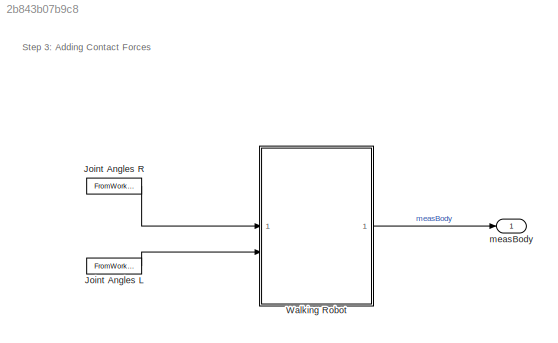
MODEL slx_2b843b07b9c8
KIND model
CONFIG AbsTol = auto
CONFIG EnableMultiTasking = off
CONFIG FixedStep = auto
CONFIG MaxStep = auto
CONFIG MinStep = auto
CONFIG PreLoadFcn = robotParameters\nload jointAngs
CONFIG RelTol = 1e-3
CONFIG SampleTimeConstraint = Unconstrained
CONFIG SolverName = VariableStepAuto
CONFIG StartTime = 0.0
CONFIG StopTime = 10.0
BLOCK [FromWorkspace] Joint Angles L
  OutputAfterFinalValue = Holding final value
  VariableName = jAngsL
BLOCK [FromWorkspace] Joint Angles R
  OutputAfterFinalValue = Holding final value
  VariableName = jAngsR
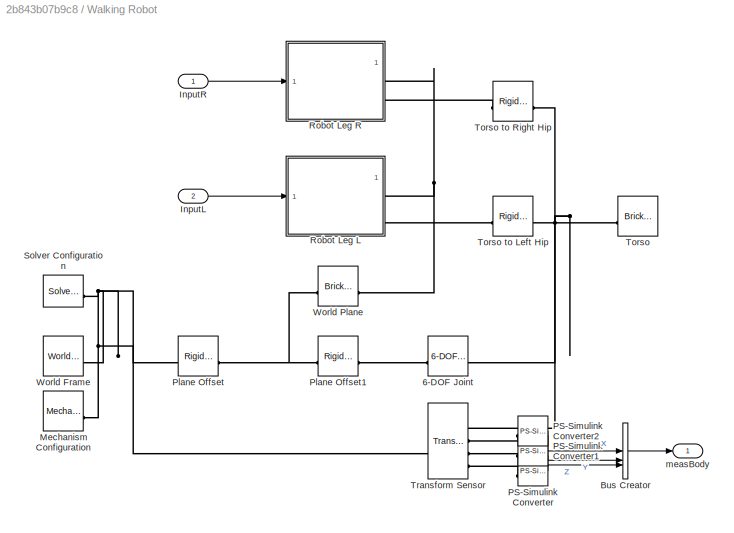
BLOCK [SubSystem] Walking Robot
BLOCK [Reference] Walking Robot/6-DOF Joint  REF=sm_lib/Joints/6-DOF Joint
  SourceBlock = sm_lib/Joints/6-DOF Joint
  SourceType = 6-DOF Joint
BLOCK [BusCreator] Walking Robot/Bus Creator
  DisplayOption = bar
  InheritFromInputs = on
  Inputs = 3
BLOCK [Inport] Walking Robot/InputL
  Port = 2
BLOCK [Inport] Walking Robot/InputR
BLOCK [Reference] Walking Robot/Mechanism Configuration  REF=sm_lib/Utilities/Mechanism
Configuration
  SourceBlock = sm_lib/Utilities/Mechanism\nConfiguration
  SourceType = Mechanism\nConfiguration
BLOCK [Reference] Walking Robot/PS-Simulink Converter  REF=nesl_utility/PS-Simulink
Converter
  SourceBlock = nesl_utility/PS-Simulink\nConverter
  SourceType = PS-Simulink\nConverter
BLOCK [Reference] Walking Robot/PS-Simulink Converter1  REF=nesl_utility/PS-Simulink
Converter
  SourceBlock = nesl_utility/PS-Simulink\nConverter
  SourceType = PS-Simulink\nConverter
BLOCK [Reference] Walking Robot/PS-Simulink Converter2  REF=nesl_utility/PS-Simulink
Converter
  SourceBlock = nesl_utility/PS-Simulink\nConverter
  SourceType = PS-Simulink\nConverter
BLOCK [Reference] Walking Robot/Plane Offset  REF=sm_lib/Frames and
Transforms/Rigid
Transform
  SourceBlock = sm_lib/Frames and\nTransforms/Rigid\nTransform
  SourceType = Rigid\nTransform
BLOCK [Reference] Walking Robot/Plane Offset1  REF=sm_lib/Frames and
Transforms/Rigid
Transform
  SourceBlock = sm_lib/Frames and\nTransforms/Rigid\nTransform
  SourceType = Rigid\nTransform
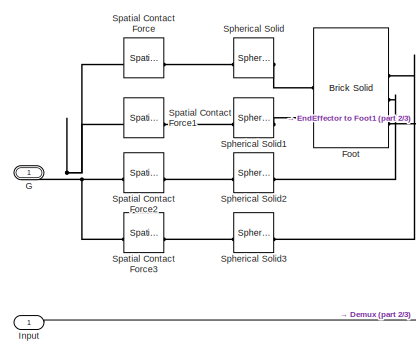
[diagram: Walking Robot/Robot Leg L - part 1/3, left side, full height]
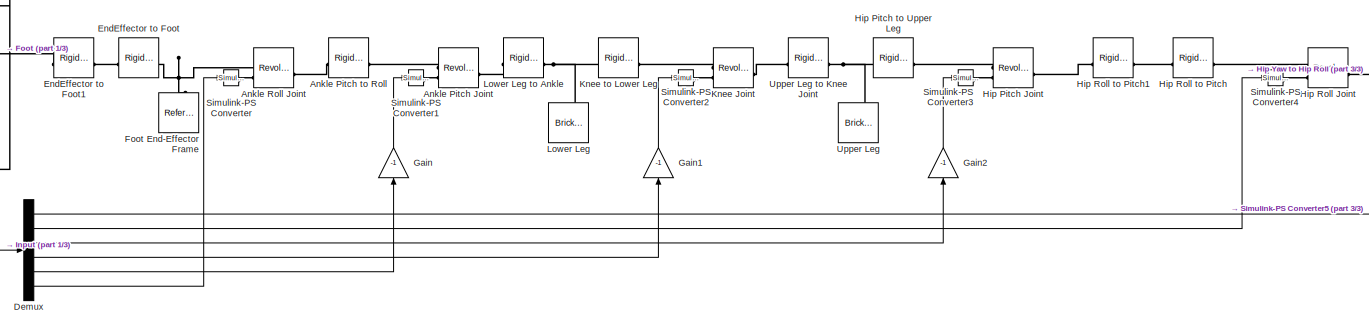
[diagram: Walking Robot/Robot Leg L - part 2/3, center side, full height]
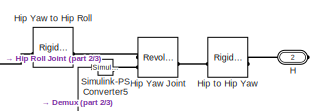
[diagram: Walking Robot/Robot Leg L - part 3/3, middle right region]
BLOCK [SubSystem] Walking Robot/Robot Leg L
BLOCK [Reference] Walking Robot/Robot Leg L/Ankle Pitch Joint  REF=sm_lib/Joints/Revolute Joint
  SourceBlock = sm_lib/Joints/Revolute Joint
  SourceType = Revolute Joint
BLOCK [Reference] Walking Robot/Robot Leg L/Ankle Pitch to Roll  REF=sm_lib/Frames and
Transforms/Rigid
Transform
  SourceBlock = sm_lib/Frames and\nTransforms/Rigid\nTransform
  SourceType = Rigid\nTransform
BLOCK [Reference] Walking Robot/Robot Leg L/Ankle Roll Joint  REF=sm_lib/Joints/Revolute Joint
  SourceBlock = sm_lib/Joints/Revolute Joint
  SourceType = Revolute Joint
BLOCK [Demux] Walking Robot/Robot Leg L/Demux
  Outputs = 6
BLOCK [Reference] Walking Robot/Robot Leg L/EndEffector to Foot  REF=sm_lib/Frames and
Transforms/Rigid
Transform
  NameLocation = top
  SourceBlock = sm_lib/Frames and\nTransforms/Rigid\nTransform
  SourceType = Rigid\nTransform
BLOCK [Reference] Walking Robot/Robot Leg L/EndEffector to Foot1  REF=sm_lib/Frames and
Transforms/Rigid
Transform
  SourceBlock = sm_lib/Frames and\nTransforms/Rigid\nTransform
  SourceType = Rigid\nTransform
BLOCK [Reference] Walking Robot/Robot Leg L/Foot  REF=sm_lib/Body Elements/Brick Solid
  SourceBlock = sm_lib/Body Elements/Brick Solid
  SourceType = Brick Solid
BLOCK [Reference] Walking Robot/Robot Leg L/Foot End-Effector Frame  REF=sm_lib/Frames and
Transforms/Reference
Frame
  NameLocation = left
  SourceBlock = sm_lib/Frames and\nTransforms/Reference\nFrame
  SourceType = Reference\nFrame
BLOCK [PMIOPort] Walking Robot/Robot Leg L/G
  Side = Right
BLOCK [Gain] Walking Robot/Robot Leg L/Gain
  Gain = -1
  NameLocation = right
BLOCK [Gain] Walking Robot/Robot Leg L/Gain1
  Gain = -1
  NameLocation = right
BLOCK [Gain] Walking Robot/Robot Leg L/Gain2
  Gain = -1
  NameLocation = right
BLOCK [PMIOPort] Walking Robot/Robot Leg L/H
  Port = 2
  Side = Right
BLOCK [Reference] Walking Robot/Robot Leg L/Hip Pitch Joint  REF=sm_lib/Joints/Revolute Joint
  SourceBlock = sm_lib/Joints/Revolute Joint
  SourceType = Revolute Joint
BLOCK [Reference] Walking Robot/Robot Leg L/Hip Pitch to Upper Leg  REF=sm_lib/Frames and
Transforms/Rigid
Transform
  NameLocation = top
  SourceBlock = sm_lib/Frames and\nTransforms/Rigid\nTransform
  SourceType = Rigid\nTransform
BLOCK [Reference] Walking Robot/Robot Leg L/Hip Roll Joint  REF=sm_lib/Joints/Revolute Joint
  SourceBlock = sm_lib/Joints/Revolute Joint
  SourceType = Revolute Joint
BLOCK [Reference] Walking Robot/Robot Leg L/Hip Roll to Pitch  REF=sm_lib/Frames and
Transforms/Rigid
Transform
  SourceBlock = sm_lib/Frames and\nTransforms/Rigid\nTransform
  SourceType = Rigid\nTransform
BLOCK [Reference] Walking Robot/Robot Leg L/Hip Roll to Pitch1  REF=sm_lib/Frames and
Transforms/Rigid
Transform
  SourceBlock = sm_lib/Frames and\nTransforms/Rigid\nTransform
  SourceType = Rigid\nTransform
BLOCK [Reference] Walking Robot/Robot Leg L/Hip Yaw Joint  REF=sm_lib/Joints/Revolute Joint
  SourceBlock = sm_lib/Joints/Revolute Joint
  SourceType = Revolute Joint
BLOCK [Reference] Walking Robot/Robot Leg L/Hip Yaw to Hip Roll  REF=sm_lib/Frames and
Transforms/Rigid
Transform
  NameLocation = top
  SourceBlock = sm_lib/Frames and\nTransforms/Rigid\nTransform
  SourceType = Rigid\nTransform
BLOCK [Reference] Walking Robot/Robot Leg L/Hip to Hip Yaw  REF=sm_lib/Frames and
Transforms/Rigid
Transform
  NameLocation = top
  SourceBlock = sm_lib/Frames and\nTransforms/Rigid\nTransform
  SourceType = Rigid\nTransform
BLOCK [Inport] Walking Robot/Robot Leg L/Input
BLOCK [Reference] Walking Robot/Robot Leg L/Knee Joint  REF=sm_lib/Joints/Revolute Joint
  SourceBlock = sm_lib/Joints/Revolute Joint
  SourceType = Revolute Joint
BLOCK [Reference] Walking Robot/Robot Leg L/Knee to Lower Leg  REF=sm_lib/Frames and
Transforms/Rigid
Transform
  NameLocation = top
  SourceBlock = sm_lib/Frames and\nTransforms/Rigid\nTransform
  SourceType = Rigid\nTransform
BLOCK [Reference] Walking Robot/Robot Leg L/Lower Leg  REF=sm_lib/Body Elements/Brick Solid
  NameLocation = right
  SourceBlock = sm_lib/Body Elements/Brick Solid
  SourceType = Brick Solid
BLOCK [Reference] Walking Robot/Robot Leg L/Lower Leg to Ankle  REF=sm_lib/Frames and
Transforms/Rigid
Transform
  NameLocation = top
  SourceBlock = sm_lib/Frames and\nTransforms/Rigid\nTransform
  SourceType = Rigid\nTransform
BLOCK [Reference] Walking Robot/Robot Leg L/Simulink-PS Converter  REF=nesl_utility/Simulink-PS
Converter
  SourceBlock = nesl_utility/Simulink-PS\nConverter
  SourceType = Simulink-PS\nConverter
BLOCK [Reference] Walking Robot/Robot Leg L/Simulink-PS Converter1  REF=nesl_utility/Simulink-PS
Converter
  SourceBlock = nesl_utility/Simulink-PS\nConverter
  SourceType = Simulink-PS\nConverter
BLOCK [Reference] Walking Robot/Robot Leg L/Simulink-PS Converter2  REF=nesl_utility/Simulink-PS
Converter
  SourceBlock = nesl_utility/Simulink-PS\nConverter
  SourceType = Simulink-PS\nConverter
BLOCK [Reference] Walking Robot/Robot Leg L/Simulink-PS Converter3  REF=nesl_utility/Simulink-PS
Converter
  SourceBlock = nesl_utility/Simulink-PS\nConverter
  SourceType = Simulink-PS\nConverter
BLOCK [Reference] Walking Robot/Robot Leg L/Simulink-PS Converter4  REF=nesl_utility/Simulink-PS
Converter
  SourceBlock = nesl_utility/Simulink-PS\nConverter
  SourceType = Simulink-PS\nConverter
BLOCK [Reference] Walking Robot/Robot Leg L/Simulink-PS Converter5  REF=nesl_utility/Simulink-PS
Converter
  SourceBlock = nesl_utility/Simulink-PS\nConverter
  SourceType = Simulink-PS\nConverter
BLOCK [Reference] Walking Robot/Robot Leg L/Spatial Contact Force  REF=sm_lib/Forces and
Torques/Spatial
Contact Force
  SourceBlock = sm_lib/Forces and\nTorques/Spatial\nContact Force
  SourceType = Spatial\nContact Force
BLOCK [Reference] Walking Robot/Robot Leg L/Spatial Contact Force1  REF=sm_lib/Forces and
Torques/Spatial
Contact Force
  SourceBlock = sm_lib/Forces and\nTorques/Spatial\nContact Force
  SourceType = Spatial\nContact Force
BLOCK [Reference] Walking Robot/Robot Leg L/Spatial Contact Force2  REF=sm_lib/Forces and
Torques/Spatial
Contact Force
  SourceBlock = sm_lib/Forces and\nTorques/Spatial\nContact Force
  SourceType = Spatial\nContact Force
BLOCK [Reference] Walking Robot/Robot Leg L/Spatial Contact Force3  REF=sm_lib/Forces and
Torques/Spatial
Contact Force
  SourceBlock = sm_lib/Forces and\nTorques/Spatial\nContact Force
  SourceType = Spatial\nContact Force
BLOCK [Reference] Walking Robot/Robot Leg L/Spherical Solid  REF=sm_lib/Body Elements/Spherical Solid
  SourceBlock = sm_lib/Body Elements/Spherical Solid
  SourceType = Spherical Solid
BLOCK [Reference] Walking Robot/Robot Leg L/Spherical Solid1  REF=sm_lib/Body Elements/Spherical Solid
  SourceBlock = sm_lib/Body Elements/Spherical Solid
  SourceType = Spherical Solid
BLOCK [Reference] Walking Robot/Robot Leg L/Spherical Solid2  REF=sm_lib/Body Elements/Spherical Solid
  SourceBlock = sm_lib/Body Elements/Spherical Solid
  SourceType = Spherical Solid
BLOCK [Reference] Walking Robot/Robot Leg L/Spherical Solid3  REF=sm_lib/Body Elements/Spherical Solid
  SourceBlock = sm_lib/Body Elements/Spherical Solid
  SourceType = Spherical Solid
BLOCK [Reference] Walking Robot/Robot Leg L/Upper Leg  REF=sm_lib/Body Elements/Brick Solid
  NameLocation = right
  SourceBlock = sm_lib/Body Elements/Brick Solid
  SourceType = Brick Solid
BLOCK [Reference] Walking Robot/Robot Leg L/Upper Leg to Knee Joint  REF=sm_lib/Frames and
Transforms/Rigid
Transform
  NameLocation = top
  SourceBlock = sm_lib/Frames and\nTransforms/Rigid\nTransform
  SourceType = Rigid\nTransform
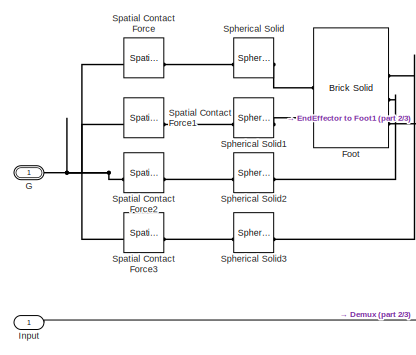
[diagram: Walking Robot/Robot Leg R - part 1/3, left side, full height]
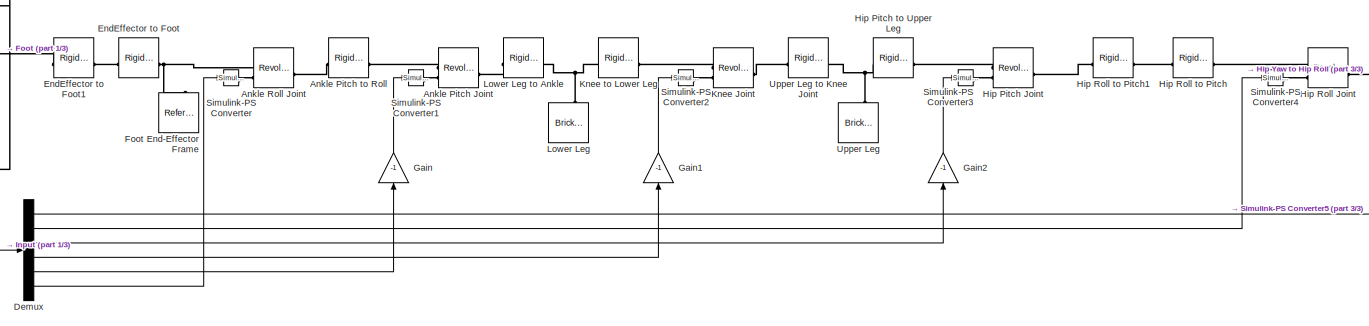
[diagram: Walking Robot/Robot Leg R - part 2/3, center side, full height]
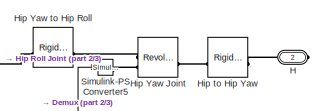
[diagram: Walking Robot/Robot Leg R - part 3/3, middle right region]
BLOCK [SubSystem] Walking Robot/Robot Leg R
BLOCK [Reference] Walking Robot/Robot Leg R/Ankle Pitch Joint  REF=sm_lib/Joints/Revolute Joint
  SourceBlock = sm_lib/Joints/Revolute Joint
  SourceType = Revolute Joint
BLOCK [Reference] Walking Robot/Robot Leg R/Ankle Pitch to Roll  REF=sm_lib/Frames and
Transforms/Rigid
Transform
  SourceBlock = sm_lib/Frames and\nTransforms/Rigid\nTransform
  SourceType = Rigid\nTransform
BLOCK [Reference] Walking Robot/Robot Leg R/Ankle Roll Joint  REF=sm_lib/Joints/Revolute Joint
  SourceBlock = sm_lib/Joints/Revolute Joint
  SourceType = Revolute Joint
BLOCK [Demux] Walking Robot/Robot Leg R/Demux
  Outputs = 6
BLOCK [Reference] Walking Robot/Robot Leg R/EndEffector to Foot  REF=sm_lib/Frames and
Transforms/Rigid
Transform
  NameLocation = top
  SourceBlock = sm_lib/Frames and\nTransforms/Rigid\nTransform
  SourceType = Rigid\nTransform
BLOCK [Reference] Walking Robot/Robot Leg R/EndEffector to Foot1  REF=sm_lib/Frames and
Transforms/Rigid
Transform
  SourceBlock = sm_lib/Frames and\nTransforms/Rigid\nTransform
  SourceType = Rigid\nTransform
BLOCK [Reference] Walking Robot/Robot Leg R/Foot  REF=sm_lib/Body Elements/Brick Solid
  SourceBlock = sm_lib/Body Elements/Brick Solid
  SourceType = Brick Solid
BLOCK [Reference] Walking Robot/Robot Leg R/Foot End-Effector Frame  REF=sm_lib/Frames and
Transforms/Reference
Frame
  NameLocation = left
  SourceBlock = sm_lib/Frames and\nTransforms/Reference\nFrame
  SourceType = Reference\nFrame
BLOCK [PMIOPort] Walking Robot/Robot Leg R/G
  Side = Right
BLOCK [Gain] Walking Robot/Robot Leg R/Gain
  Gain = -1
  NameLocation = right
BLOCK [Gain] Walking Robot/Robot Leg R/Gain1
  Gain = -1
  NameLocation = right
BLOCK [Gain] Walking Robot/Robot Leg R/Gain2
  Gain = -1
  NameLocation = right
BLOCK [PMIOPort] Walking Robot/Robot Leg R/H
  Port = 2
  Side = Right
BLOCK [Reference] Walking Robot/Robot Leg R/Hip Pitch Joint  REF=sm_lib/Joints/Revolute Joint
  SourceBlock = sm_lib/Joints/Revolute Joint
  SourceType = Revolute Joint
BLOCK [Reference] Walking Robot/Robot Leg R/Hip Pitch to Upper Leg  REF=sm_lib/Frames and
Transforms/Rigid
Transform
  NameLocation = top
  SourceBlock = sm_lib/Frames and\nTransforms/Rigid\nTransform
  SourceType = Rigid\nTransform
BLOCK [Reference] Walking Robot/Robot Leg R/Hip Roll Joint  REF=sm_lib/Joints/Revolute Joint
  SourceBlock = sm_lib/Joints/Revolute Joint
  SourceType = Revolute Joint
BLOCK [Reference] Walking Robot/Robot Leg R/Hip Roll to Pitch  REF=sm_lib/Frames and
Transforms/Rigid
Transform
  SourceBlock = sm_lib/Frames and\nTransforms/Rigid\nTransform
  SourceType = Rigid\nTransform
BLOCK [Reference] Walking Robot/Robot Leg R/Hip Roll to Pitch1  REF=sm_lib/Frames and
Transforms/Rigid
Transform
  SourceBlock = sm_lib/Frames and\nTransforms/Rigid\nTransform
  SourceType = Rigid\nTransform
BLOCK [Reference] Walking Robot/Robot Leg R/Hip Yaw Joint  REF=sm_lib/Joints/Revolute Joint
  SourceBlock = sm_lib/Joints/Revolute Joint
  SourceType = Revolute Joint
BLOCK [Reference] Walking Robot/Robot Leg R/Hip Yaw to Hip Roll  REF=sm_lib/Frames and
Transforms/Rigid
Transform
  NameLocation = top
  SourceBlock = sm_lib/Frames and\nTransforms/Rigid\nTransform
  SourceType = Rigid\nTransform
BLOCK [Reference] Walking Robot/Robot Leg R/Hip to Hip Yaw  REF=sm_lib/Frames and
Transforms/Rigid
Transform
  NameLocation = top
  SourceBlock = sm_lib/Frames and\nTransforms/Rigid\nTransform
  SourceType = Rigid\nTransform
BLOCK [Inport] Walking Robot/Robot Leg R/Input
BLOCK [Reference] Walking Robot/Robot Leg R/Knee Joint  REF=sm_lib/Joints/Revolute Joint
  SourceBlock = sm_lib/Joints/Revolute Joint
  SourceType = Revolute Joint
BLOCK [Reference] Walking Robot/Robot Leg R/Knee to Lower Leg  REF=sm_lib/Frames and
Transforms/Rigid
Transform
  NameLocation = top
  SourceBlock = sm_lib/Frames and\nTransforms/Rigid\nTransform
  SourceType = Rigid\nTransform
BLOCK [Reference] Walking Robot/Robot Leg R/Lower Leg  REF=sm_lib/Body Elements/Brick Solid
  NameLocation = right
  SourceBlock = sm_lib/Body Elements/Brick Solid
  SourceType = Brick Solid
BLOCK [Reference] Walking Robot/Robot Leg R/Lower Leg to Ankle  REF=sm_lib/Frames and
Transforms/Rigid
Transform
  NameLocation = top
  SourceBlock = sm_lib/Frames and\nTransforms/Rigid\nTransform
  SourceType = Rigid\nTransform
BLOCK [Reference] Walking Robot/Robot Leg R/Simulink-PS Converter  REF=nesl_utility/Simulink-PS
Converter
  SourceBlock = nesl_utility/Simulink-PS\nConverter
  SourceType = Simulink-PS\nConverter
BLOCK [Reference] Walking Robot/Robot Leg R/Simulink-PS Converter1  REF=nesl_utility/Simulink-PS
Converter
  SourceBlock = nesl_utility/Simulink-PS\nConverter
  SourceType = Simulink-PS\nConverter
BLOCK [Reference] Walking Robot/Robot Leg R/Simulink-PS Converter2  REF=nesl_utility/Simulink-PS
Converter
  SourceBlock = nesl_utility/Simulink-PS\nConverter
  SourceType = Simulink-PS\nConverter
BLOCK [Reference] Walking Robot/Robot Leg R/Simulink-PS Converter3  REF=nesl_utility/Simulink-PS
Converter
  SourceBlock = nesl_utility/Simulink-PS\nConverter
  SourceType = Simulink-PS\nConverter
BLOCK [Reference] Walking Robot/Robot Leg R/Simulink-PS Converter4  REF=nesl_utility/Simulink-PS
Converter
  SourceBlock = nesl_utility/Simulink-PS\nConverter
  SourceType = Simulink-PS\nConverter
BLOCK [Reference] Walking Robot/Robot Leg R/Simulink-PS Converter5  REF=nesl_utility/Simulink-PS
Converter
  SourceBlock = nesl_utility/Simulink-PS\nConverter
  SourceType = Simulink-PS\nConverter
BLOCK [Reference] Walking Robot/Robot Leg R/Spatial Contact Force  REF=sm_lib/Forces and
Torques/Spatial
Contact Force
  SourceBlock = sm_lib/Forces and\nTorques/Spatial\nContact Force
  SourceType = Spatial\nContact Force
BLOCK [Reference] Walking Robot/Robot Leg R/Spatial Contact Force1  REF=sm_lib/Forces and
Torques/Spatial
Contact Force
  SourceBlock = sm_lib/Forces and\nTorques/Spatial\nContact Force
  SourceType = Spatial\nContact Force
BLOCK [Reference] Walking Robot/Robot Leg R/Spatial Contact Force2  REF=sm_lib/Forces and
Torques/Spatial
Contact Force
  SourceBlock = sm_lib/Forces and\nTorques/Spatial\nContact Force
  SourceType = Spatial\nContact Force
BLOCK [Reference] Walking Robot/Robot Leg R/Spatial Contact Force3  REF=sm_lib/Forces and
Torques/Spatial
Contact Force
  SourceBlock = sm_lib/Forces and\nTorques/Spatial\nContact Force
  SourceType = Spatial\nContact Force
BLOCK [Reference] Walking Robot/Robot Leg R/Spherical Solid  REF=sm_lib/Body Elements/Spherical Solid
  SourceBlock = sm_lib/Body Elements/Spherical Solid
  SourceType = Spherical Solid
BLOCK [Reference] Walking Robot/Robot Leg R/Spherical Solid1  REF=sm_lib/Body Elements/Spherical Solid
  SourceBlock = sm_lib/Body Elements/Spherical Solid
  SourceType = Spherical Solid
BLOCK [Reference] Walking Robot/Robot Leg R/Spherical Solid2  REF=sm_lib/Body Elements/Spherical Solid
  SourceBlock = sm_lib/Body Elements/Spherical Solid
  SourceType = Spherical Solid
BLOCK [Reference] Walking Robot/Robot Leg R/Spherical Solid3  REF=sm_lib/Body Elements/Spherical Solid
  SourceBlock = sm_lib/Body Elements/Spherical Solid
  SourceType = Spherical Solid
BLOCK [Reference] Walking Robot/Robot Leg R/Upper Leg  REF=sm_lib/Body Elements/Brick Solid
  NameLocation = right
  SourceBlock = sm_lib/Body Elements/Brick Solid
  SourceType = Brick Solid
BLOCK [Reference] Walking Robot/Robot Leg R/Upper Leg to Knee Joint  REF=sm_lib/Frames and
Transforms/Rigid
Transform
  NameLocation = top
  SourceBlock = sm_lib/Frames and\nTransforms/Rigid\nTransform
  SourceType = Rigid\nTransform
BLOCK [Reference] Walking Robot/Solver Configuration  REF=nesl_utility/Solver
Configuration
  SourceBlock = nesl_utility/Solver\nConfiguration
  SourceType = Solver\nConfiguration
BLOCK [Reference] Walking Robot/Torso  REF=sm_lib/Body Elements/Brick Solid
  SourceBlock = sm_lib/Body Elements/Brick Solid
  SourceType = Brick Solid
BLOCK [Reference] Walking Robot/Torso to Left Hip  REF=sm_lib/Frames and
Transforms/Rigid
Transform
  SourceBlock = sm_lib/Frames and\nTransforms/Rigid\nTransform
  SourceType = Rigid\nTransform
BLOCK [Reference] Walking Robot/Torso to Right Hip  REF=sm_lib/Frames and
Transforms/Rigid
Transform
  SourceBlock = sm_lib/Frames and\nTransforms/Rigid\nTransform
  SourceType = Rigid\nTransform
BLOCK [Reference] Walking Robot/Transform Sensor  REF=sm_lib/Frames and
Transforms/Transform
Sensor
  SourceBlock = sm_lib/Frames and\nTransforms/Transform\nSensor
  SourceType = Transform\nSensor
BLOCK [Reference] Walking Robot/World Frame  REF=sm_lib/Frames and
Transforms/World Frame
  SourceBlock = sm_lib/Frames and\nTransforms/World Frame
  SourceType = World Frame
BLOCK [Reference] Walking Robot/World Plane  REF=sm_lib/Body Elements/Brick Solid
  SourceBlock = sm_lib/Body Elements/Brick Solid
  SourceType = Brick Solid
BLOCK [Outport] Walking Robot/measBody
  VectorParamsAs1DForOutWhenUnconnected = off
BLOCK [Outport] measBody
  VectorParamsAs1DForOutWhenUnconnected = off
ANNOTATION (root): Step 3: Adding Contact Forces
LINE Joint Angles L:1 -> Walking Robot:2
LINE Joint Angles R:1 -> Walking Robot:1
LINE Walking Robot/Bus Creator:1 -> Walking Robot/measBody:1
LINE Walking Robot/InputL:1 -> Walking Robot/Robot Leg L:1
LINE Walking Robot/InputR:1 -> Walking Robot/Robot Leg R:1
LINE Walking Robot/PS-Simulink Converter1:1 -> Walking Robot/Bus Creator:2
LINE Walking Robot/PS-Simulink Converter2:1 -> Walking Robot/Bus Creator:1
LINE Walking Robot/PS-Simulink Converter:1 -> Walking Robot/Bus Creator:3
LINE Walking Robot/Robot Leg L/Demux:1 -> Walking Robot/Robot Leg L/Simulink-PS Converter5:1
LINE Walking Robot/Robot Leg L/Demux:2 -> Walking Robot/Robot Leg L/Simulink-PS Converter4:1
LINE Walking Robot/Robot Leg L/Demux:3 -> Walking Robot/Robot Leg L/Gain2:1
LINE Walking Robot/Robot Leg L/Demux:4 -> Walking Robot/Robot Leg L/Gain1:1
LINE Walking Robot/Robot Leg L/Demux:5 -> Walking Robot/Robot Leg L/Gain:1
LINE Walking Robot/Robot Leg L/Demux:6 -> Walking Robot/Robot Leg L/Simulink-PS Converter:1
LINE Walking Robot/Robot Leg L/Gain1:1 -> Walking Robot/Robot Leg L/Simulink-PS Converter2:1
LINE Walking Robot/Robot Leg L/Gain2:1 -> Walking Robot/Robot Leg L/Simulink-PS Converter3:1
LINE Walking Robot/Robot Leg L/Gain:1 -> Walking Robot/Robot Leg L/Simulink-PS Converter1:1
LINE Walking Robot/Robot Leg L/Input:1 -> Walking Robot/Robot Leg L/Demux:1
LINE Walking Robot/Robot Leg R/Demux:1 -> Walking Robot/Robot Leg R/Simulink-PS Converter5:1
LINE Walking Robot/Robot Leg R/Demux:2 -> Walking Robot/Robot Leg R/Simulink-PS Converter4:1
LINE Walking Robot/Robot Leg R/Demux:3 -> Walking Robot/Robot Leg R/Gain2:1
LINE Walking Robot/Robot Leg R/Demux:4 -> Walking Robot/Robot Leg R/Gain1:1
LINE Walking Robot/Robot Leg R/Demux:5 -> Walking Robot/Robot Leg R/Gain:1
LINE Walking Robot/Robot Leg R/Demux:6 -> Walking Robot/Robot Leg R/Simulink-PS Converter:1
LINE Walking Robot/Robot Leg R/Gain1:1 -> Walking Robot/Robot Leg R/Simulink-PS Converter2:1
LINE Walking Robot/Robot Leg R/Gain2:1 -> Walking Robot/Robot Leg R/Simulink-PS Converter3:1
LINE Walking Robot/Robot Leg R/Gain:1 -> Walking Robot/Robot Leg R/Simulink-PS Converter1:1
LINE Walking Robot/Robot Leg R/Input:1 -> Walking Robot/Robot Leg R/Demux:1
LINE Walking Robot:1 -> measBody:1
PLINE Walking Robot/6-DOF Joint:LConn1 -- Walking Robot/Plane Offset1:RConn1
PNET net1: Walking Robot/6-DOF Joint:RConn1 -- Walking Robot/Torso to Left Hip:LConn1 -- Walking Robot/Torso to Right Hip:LConn1 -- Walking Robot/Torso:RConn1 -- Walking Robot/Transform Sensor:RConn1
PNET net2: Walking Robot/Mechanism Configuration:RConn1 -- Walking Robot/Plane Offset:LConn1 -- Walking Robot/Solver Configuration:RConn1 -- Walking Robot/Transform Sensor:LConn1 -- Walking Robot/World Frame:RConn1
PLINE Walking Robot/PS-Simulink Converter1:LConn1 -- Walking Robot/Transform Sensor:RConn3
PLINE Walking Robot/PS-Simulink Converter2:LConn1 -- Walking Robot/Transform Sensor:RConn2
PLINE Walking Robot/PS-Simulink Converter:LConn1 -- Walking Robot/Transform Sensor:RConn4
PNET net3: Walking Robot/Plane Offset1:LConn1 -- Walking Robot/Plane Offset:RConn1 -- Walking Robot/World Plane:RConn1
PLINE Walking Robot/Robot Leg L/Ankle Pitch Joint:LConn1 -- Walking Robot/Robot Leg L/Ankle Pitch to Roll:LConn1
PLINE Walking Robot/Robot Leg L/Ankle Pitch Joint:LConn2 -- Walking Robot/Robot Leg L/Simulink-PS Converter1:RConn1
PLINE Walking Robot/Robot Leg L/Ankle Pitch Joint:RConn1 -- Walking Robot/Robot Leg L/Lower Leg to Ankle:RConn1
PLINE Walking Robot/Robot Leg L/Ankle Pitch to Roll:RConn1 -- Walking Robot/Robot Leg L/Ankle Roll Joint:RConn1
PNET net4: Walking Robot/Robot Leg L/Ankle Roll Joint:LConn1 -- Walking Robot/Robot Leg L/EndEffector to Foot:LConn1 -- Walking Robot/Robot Leg L/Foot End-Effector Frame:RConn1
PLINE Walking Robot/Robot Leg L/Ankle Roll Joint:LConn2 -- Walking Robot/Robot Leg L/Simulink-PS Converter:RConn1
PLINE Walking Robot/Robot Leg L/EndEffector to Foot1:LConn1 -- Walking Robot/Robot Leg L/EndEffector to Foot:RConn1
PLINE Walking Robot/Robot Leg L/EndEffector to Foot1:RConn1 -- Walking Robot/Robot Leg L/Foot:LConn3
PLINE Walking Robot/Robot Leg L/Foot:LConn1 -- Walking Robot/Robot Leg L/Spherical Solid3:RConn1
PLINE Walking Robot/Robot Leg L/Foot:LConn2 -- Walking Robot/Robot Leg L/Spherical Solid2:RConn1
PLINE Walking Robot/Robot Leg L/Foot:RConn1 -- Walking Robot/Robot Leg L/Spherical Solid:RConn1
PLINE Walking Robot/Robot Leg L/Foot:RConn2 -- Walking Robot/Robot Leg L/Spherical Solid1:RConn1
PNET net5: Walking Robot/Robot Leg L/G:RConn1 -- Walking Robot/Robot Leg L/Spatial Contact Force1:LConn1 -- Walking Robot/Robot Leg L/Spatial Contact Force2:LConn1 -- Walking Robot/Robot Leg L/Spatial Contact Force3:LConn1 -- Walking Robot/Robot Leg L/Spatial Contact Force:LConn1
PLINE Walking Robot/Robot Leg L/H:RConn1 -- Walking Robot/Robot Leg L/Hip to Hip Yaw:LConn1
PLINE Walking Robot/Robot Leg L/Hip Pitch Joint:LConn1 -- Walking Robot/Robot Leg L/Hip Pitch to Upper Leg:LConn1
PLINE Walking Robot/Robot Leg L/Hip Pitch Joint:LConn2 -- Walking Robot/Robot Leg L/Simulink-PS Converter3:RConn1
PLINE Walking Robot/Robot Leg L/Hip Pitch Joint:RConn1 -- Walking Robot/Robot Leg L/Hip Roll to Pitch1:RConn1
PNET net6: Walking Robot/Robot Leg L/Hip Pitch to Upper Leg:RConn1 -- Walking Robot/Robot Leg L/Upper Leg to Knee Joint:LConn1 -- Walking Robot/Robot Leg L/Upper Leg:RConn1
PLINE Walking Robot/Robot Leg L/Hip Roll Joint:LConn1 -- Walking Robot/Robot Leg L/Hip Roll to Pitch:LConn1
PLINE Walking Robot/Robot Leg L/Hip Roll Joint:LConn2 -- Walking Robot/Robot Leg L/Simulink-PS Converter4:RConn1
PLINE Walking Robot/Robot Leg L/Hip Roll Joint:RConn1 -- Walking Robot/Robot Leg L/Hip Yaw to Hip Roll:RConn1
PLINE Walking Robot/Robot Leg L/Hip Roll to Pitch1:LConn1 -- Walking Robot/Robot Leg L/Hip Roll to Pitch:RConn1
PLINE Walking Robot/Robot Leg L/Hip Yaw Joint:LConn1 -- Walking Robot/Robot Leg L/Hip Yaw to Hip Roll:LConn1
PLINE Walking Robot/Robot Leg L/Hip Yaw Joint:LConn2 -- Walking Robot/Robot Leg L/Simulink-PS Converter5:RConn1
PLINE Walking Robot/Robot Leg L/Hip Yaw Joint:RConn1 -- Walking Robot/Robot Leg L/Hip to Hip Yaw:RConn1
PLINE Walking Robot/Robot Leg L/Knee Joint:LConn1 -- Walking Robot/Robot Leg L/Knee to Lower Leg:LConn1
PLINE Walking Robot/Robot Leg L/Knee Joint:LConn2 -- Walking Robot/Robot Leg L/Simulink-PS Converter2:RConn1
PLINE Walking Robot/Robot Leg L/Knee Joint:RConn1 -- Walking Robot/Robot Leg L/Upper Leg to Knee Joint:RConn1
PNET net7: Walking Robot/Robot Leg L/Knee to Lower Leg:RConn1 -- Walking Robot/Robot Leg L/Lower Leg to Ankle:LConn1 -- Walking Robot/Robot Leg L/Lower Leg:RConn1
PLINE Walking Robot/Robot Leg L/Spatial Contact Force1:RConn1 -- Walking Robot/Robot Leg L/Spherical Solid1:LConn1
PLINE Walking Robot/Robot Leg L/Spatial Contact Force2:RConn1 -- Walking Robot/Robot Leg L/Spherical Solid2:LConn1
PLINE Walking Robot/Robot Leg L/Spatial Contact Force3:RConn1 -- Walking Robot/Robot Leg L/Spherical Solid3:LConn1
PLINE Walking Robot/Robot Leg L/Spatial Contact Force:RConn1 -- Walking Robot/Robot Leg L/Spherical Solid:LConn1
PNET net8: Walking Robot/Robot Leg L:RConn1 -- Walking Robot/Robot Leg R:RConn1 -- Walking Robot/World Plane:LConn1
PLINE Walking Robot/Robot Leg L:RConn2 -- Walking Robot/Torso to Left Hip:RConn1
PLINE Walking Robot/Robot Leg R/Ankle Pitch Joint:LConn1 -- Walking Robot/Robot Leg R/Ankle Pitch to Roll:LConn1
PLINE Walking Robot/Robot Leg R/Ankle Pitch Joint:LConn2 -- Walking Robot/Robot Leg R/Simulink-PS Converter1:RConn1
PLINE Walking Robot/Robot Leg R/Ankle Pitch Joint:RConn1 -- Walking Robot/Robot Leg R/Lower Leg to Ankle:RConn1
PLINE Walking Robot/Robot Leg R/Ankle Pitch to Roll:RConn1 -- Walking Robot/Robot Leg R/Ankle Roll Joint:RConn1
PNET net9: Walking Robot/Robot Leg R/Ankle Roll Joint:LConn1 -- Walking Robot/Robot Leg R/EndEffector to Foot:LConn1 -- Walking Robot/Robot Leg R/Foot End-Effector Frame:RConn1
PLINE Walking Robot/Robot Leg R/Ankle Roll Joint:LConn2 -- Walking Robot/Robot Leg R/Simulink-PS Converter:RConn1
PLINE Walking Robot/Robot Leg R/EndEffector to Foot1:LConn1 -- Walking Robot/Robot Leg R/EndEffector to Foot:RConn1
PLINE Walking Robot/Robot Leg R/EndEffector to Foot1:RConn1 -- Walking Robot/Robot Leg R/Foot:LConn3
PLINE Walking Robot/Robot Leg R/Foot:LConn1 -- Walking Robot/Robot Leg R/Spherical Solid3:RConn1
PLINE Walking Robot/Robot Leg R/Foot:LConn2 -- Walking Robot/Robot Leg R/Spherical Solid2:RConn1
PLINE Walking Robot/Robot Leg R/Foot:RConn1 -- Walking Robot/Robot Leg R/Spherical Solid:RConn1
PLINE Walking Robot/Robot Leg R/Foot:RConn2 -- Walking Robot/Robot Leg R/Spherical Solid1:RConn1
PNET net10: Walking Robot/Robot Leg R/G:RConn1 -- Walking Robot/Robot Leg R/Spatial Contact Force1:LConn1 -- Walking Robot/Robot Leg R/Spatial Contact Force2:LConn1 -- Walking Robot/Robot Leg R/Spatial Contact Force3:LConn1 -- Walking Robot/Robot Leg R/Spatial Contact Force:LConn1
PLINE Walking Robot/Robot Leg R/H:RConn1 -- Walking Robot/Robot Leg R/Hip to Hip Yaw:LConn1
PLINE Walking Robot/Robot Leg R/Hip Pitch Joint:LConn1 -- Walking Robot/Robot Leg R/Hip Pitch to Upper Leg:LConn1
PLINE Walking Robot/Robot Leg R/Hip Pitch Joint:LConn2 -- Walking Robot/Robot Leg R/Simulink-PS Converter3:RConn1
PLINE Walking Robot/Robot Leg R/Hip Pitch Joint:RConn1 -- Walking Robot/Robot Leg R/Hip Roll to Pitch1:RConn1
PNET net11: Walking Robot/Robot Leg R/Hip Pitch to Upper Leg:RConn1 -- Walking Robot/Robot Leg R/Upper Leg to Knee Joint:LConn1 -- Walking Robot/Robot Leg R/Upper Leg:RConn1
PLINE Walking Robot/Robot Leg R/Hip Roll Joint:LConn1 -- Walking Robot/Robot Leg R/Hip Roll to Pitch:LConn1
PLINE Walking Robot/Robot Leg R/Hip Roll Joint:LConn2 -- Walking Robot/Robot Leg R/Simulink-PS Converter4:RConn1
PLINE Walking Robot/Robot Leg R/Hip Roll Joint:RConn1 -- Walking Robot/Robot Leg R/Hip Yaw to Hip Roll:RConn1
PLINE Walking Robot/Robot Leg R/Hip Roll to Pitch1:LConn1 -- Walking Robot/Robot Leg R/Hip Roll to Pitch:RConn1
PLINE Walking Robot/Robot Leg R/Hip Yaw Joint:LConn1 -- Walking Robot/Robot Leg R/Hip Yaw to Hip Roll:LConn1
PLINE Walking Robot/Robot Leg R/Hip Yaw Joint:LConn2 -- Walking Robot/Robot Leg R/Simulink-PS Converter5:RConn1
PLINE Walking Robot/Robot Leg R/Hip Yaw Joint:RConn1 -- Walking Robot/Robot Leg R/Hip to Hip Yaw:RConn1
PLINE Walking Robot/Robot Leg R/Knee Joint:LConn1 -- Walking Robot/Robot Leg R/Knee to Lower Leg:LConn1
PLINE Walking Robot/Robot Leg R/Knee Joint:LConn2 -- Walking Robot/Robot Leg R/Simulink-PS Converter2:RConn1
PLINE Walking Robot/Robot Leg R/Knee Joint:RConn1 -- Walking Robot/Robot Leg R/Upper Leg to Knee Joint:RConn1
PNET net12: Walking Robot/Robot Leg R/Knee to Lower Leg:RConn1 -- Walking Robot/Robot Leg R/Lower Leg to Ankle:LConn1 -- Walking Robot/Robot Leg R/Lower Leg:RConn1
PLINE Walking Robot/Robot Leg R/Spatial Contact Force1:RConn1 -- Walking Robot/Robot Leg R/Spherical Solid1:LConn1
PLINE Walking Robot/Robot Leg R/Spatial Contact Force2:RConn1 -- Walking Robot/Robot Leg R/Spherical Solid2:LConn1
PLINE Walking Robot/Robot Leg R/Spatial Contact Force3:RConn1 -- Walking Robot/Robot Leg R/Spherical Solid3:LConn1
PLINE Walking Robot/Robot Leg R/Spatial Contact Force:RConn1 -- Walking Robot/Robot Leg R/Spherical Solid:LConn1
PLINE Walking Robot/Robot Leg R:RConn2 -- Walking Robot/Torso to Right Hip:RConn1
note: PNET lines group multi-terminal physical nets as a canonical sorted terminal list (undirected conserving connections); 2-terminal nets keep the pairwise PLINE form
